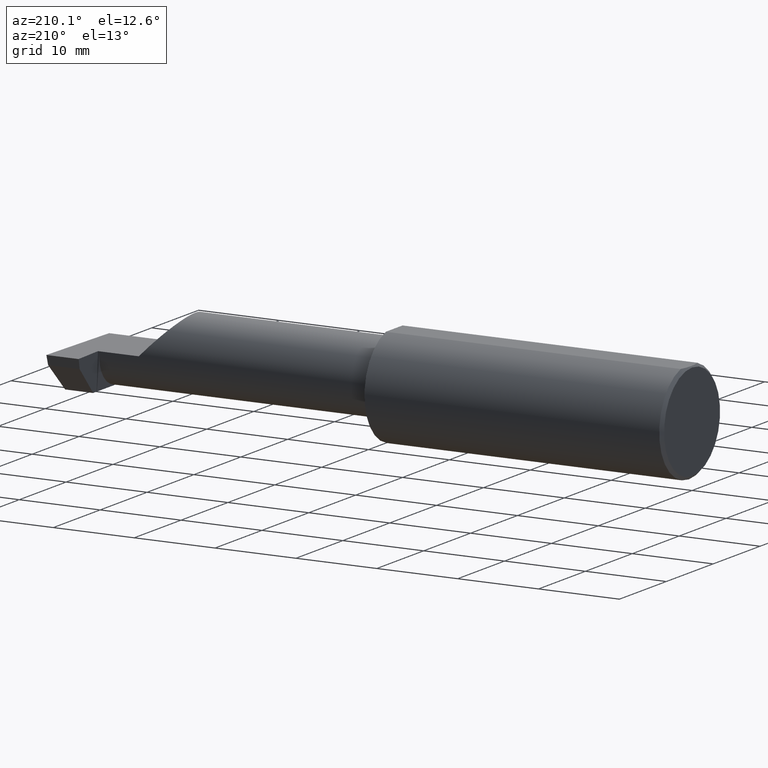
[diagram: clean part render]
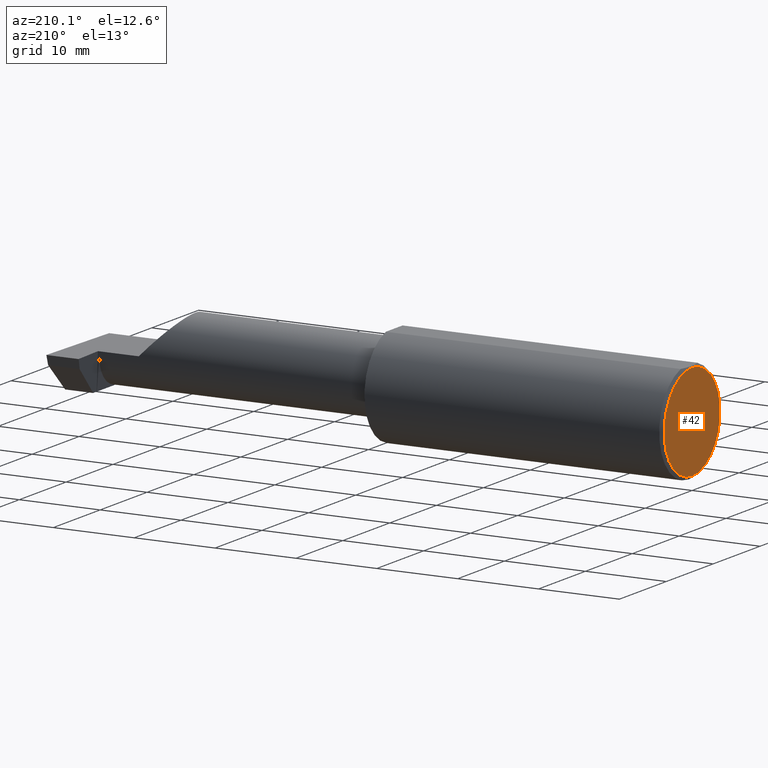
[diagram: same view with one face highlighted and labeled with its STEP entity id]
A machine part, auxiliary view. The second image highlights one B-rep face of the part: STEP entity #42.
In plain terms, the highlighted planar face has unit normal (1, 0, 0).
Its self-contained STEP definition (entity closure, byte-faithful):
#36 = VERTEX_POINT ( 'NONE', #294 ) ;
#42 = ADVANCED_FACE ( 'NONE', ( #476 ), #725, .F. ) ;
#46 = EDGE_CURVE ( 'NONE', #780, #36, #409, .T. ) ;
#116 = CIRCLE ( 'NONE', #218, 0.2348499999999999754 ) ;
#143 = CARTESIAN_POINT ( 'NONE',  ( 0.000000000000000000, 2.967931517733610643E-17, 0.2348499999999999754 ) ) ;
#176 = CARTESIAN_POINT ( 'NONE',  ( 0.000000000000000000, 0.000000000000000000, 0.000000000000000000 ) ) ;
#188 = DIRECTION ( 'NONE',  ( 1.000000000000000000, 0.000000000000000000, 0.000000000000000000 ) ) ;
#196 = ORIENTED_EDGE ( 'NONE', *, *, #791, .T. ) ;
#218 = AXIS2_PLACEMENT_3D ( 'NONE', #339, #272, #515 ) ;
#272 = DIRECTION ( 'NONE',  ( -1.000000000000000000, -0.000000000000000000, -0.000000000000000000 ) ) ;
#294 = CARTESIAN_POINT ( 'NONE',  ( 0.000000000000000000, 0.000000000000000000, -0.2348499999999999754 ) ) ;
#335 = EDGE_LOOP ( 'NONE', ( #196, #570 ) ) ;
#339 = CARTESIAN_POINT ( 'NONE',  ( 0.000000000000000000, 0.000000000000000000, 0.000000000000000000 ) ) ;
#409 = CIRCLE ( 'NONE', #795, 0.2348499999999999754 ) ;
#428 = CARTESIAN_POINT ( 'NONE',  ( 0.000000000000000000, 0.000000000000000000, 0.000000000000000000 ) ) ;
#476 = FACE_OUTER_BOUND ( 'NONE', #335, .T. ) ;
#492 = DIRECTION ( 'NONE',  ( 0.000000000000000000, 0.000000000000000000, 1.000000000000000000 ) ) ;
#505 = DIRECTION ( 'NONE',  ( 0.000000000000000000, 0.000000000000000000, -1.000000000000000000 ) ) ;
#515 = DIRECTION ( 'NONE',  ( 0.000000000000000000, 0.000000000000000000, 1.000000000000000000 ) ) ;
#570 = ORIENTED_EDGE ( 'NONE', *, *, #46, .T. ) ;
#657 = AXIS2_PLACEMENT_3D ( 'NONE', #176, #188, #505 ) ;
#683 = DIRECTION ( 'NONE',  ( -1.000000000000000000, -0.000000000000000000, -0.000000000000000000 ) ) ;
#725 = PLANE ( 'NONE',  #657 ) ;
#780 = VERTEX_POINT ( 'NONE', #143 ) ;
#791 = EDGE_CURVE ( 'NONE', #36, #780, #116, .T. ) ;
#795 = AXIS2_PLACEMENT_3D ( 'NONE', #428, #683, #492 ) ;